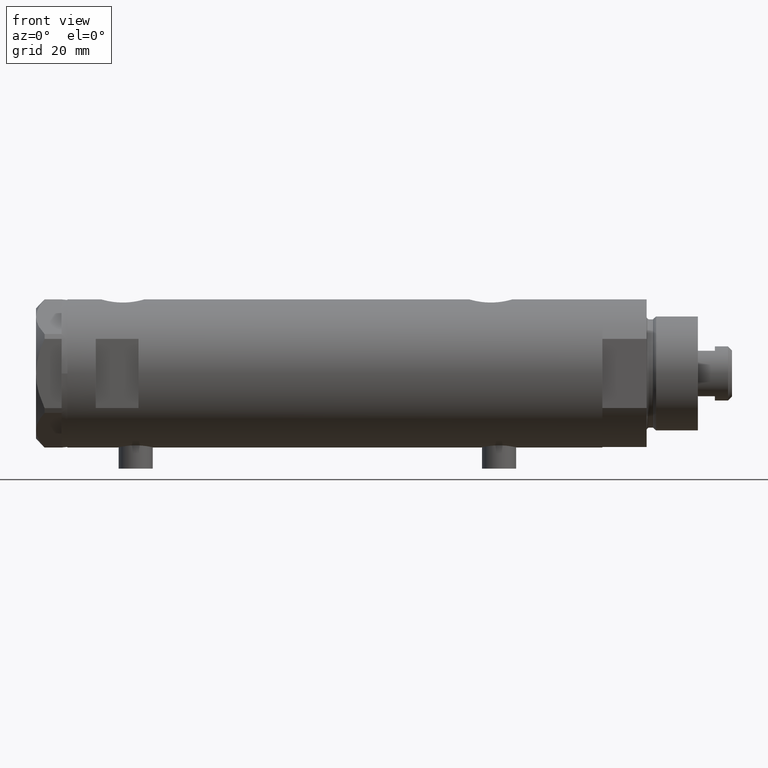
[diagram: clean part render]
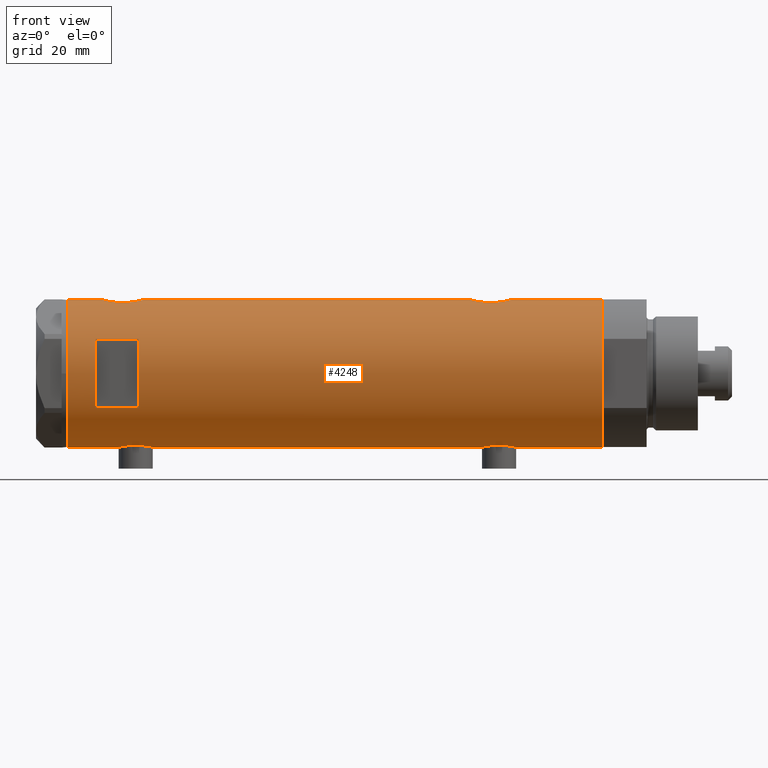
[diagram: same view with one face highlighted and labeled with its STEP entity id]
A machine part, front view. The second image highlights one B-rep face of the part: STEP entity #4248.
In plain terms, the highlighted cylindrical surface (partial cylindrical patch) has radius 26 mm, axis along (-1, -0, 0).
Its self-contained STEP definition (entity closure, byte-faithful):
#71 = VECTOR ( 'NONE', #3741, 1000.000000000000000 ) ;
#72 = CARTESIAN_POINT ( 'NONE',  ( -26.00000000000001066, -0.4086738135806035066, 63.70000000000000995 ) ) ;
#142 = CARTESIAN_POINT ( 'NONE',  ( -25.31551596256916170, -5.928819821281962277, -59.67011491904084153 ) ) ;
#153 = ORIENTED_EDGE ( 'NONE', *, *, #3831, .F. ) ;
#155 = CARTESIAN_POINT ( 'NONE',  ( -25.72076778631230098, -3.815670258243490043, 64.98312189468120437 ) ) ;
#166 = CARTESIAN_POINT ( 'NONE',  ( -25.67063510297209916, -4.128418051804850109, -52.95317424728735034 ) ) ;
#178 = VERTEX_POINT ( 'NONE', #3461 ) ;
#185 = CARTESIAN_POINT ( 'NONE',  ( 24.89854802586676286, -7.487520416261737921, -54.25184316422095065 ) ) ;
#188 = CARTESIAN_POINT ( 'NONE',  ( -25.25025691038241860, -6.198787452305317025, -58.47441165395796503 ) ) ;
#217 = CARTESIAN_POINT ( 'NONE',  ( 24.95200646071794282, -7.307522494171283967, -56.45607564187280758 ) ) ;
#220 = CARTESIAN_POINT ( 'NONE',  ( -25.23758491649666880, -6.250144606721711682, -57.23988300428195686 ) ) ;
#228 = CARTESIAN_POINT ( 'NONE',  ( 25.72873412774685775, -3.768477344985552424, 80.95287460144460567 ) ) ;
#233 = CARTESIAN_POINT ( 'NONE',  ( -25.99999999999999289, -0.4144764235405741237, 76.19999999999998863 ) ) ;
#244 = CARTESIAN_POINT ( 'NONE',  ( 25.00829008792691255, -7.115081037226466343, -52.32698996259181001 ) ) ;
#254 = CARTESIAN_POINT ( 'NONE',  ( 25.59665538672496155, -4.580438224580674067, 80.40889127712388529 ) ) ;
#264 = CARTESIAN_POINT ( 'NONE',  ( -26.00000000000000355, 3.184077527325983904E-15, 63.70000000000000995 ) ) ;
#265 = CARTESIAN_POINT ( 'NONE',  ( 25.88994451797511331, -2.432613607265599498, -61.86140968713201005 ) ) ;
#276 = CARTESIAN_POINT ( 'NONE',  ( 25.48871066912673911, -5.133852125086511897, 68.97709693256024366 ) ) ;
#278 = VERTEX_POINT ( 'NONE', #3473 ) ;
#296 = CARTESIAN_POINT ( 'NONE',  ( 25.78902964777116935, -3.336582972512946554, -61.48475840457738428 ) ) ;
#337 = CYLINDRICAL_SURFACE ( 'NONE', #2991, 26.00000000000000355 ) ;
#377 = AXIS2_PLACEMENT_3D ( 'NONE', #3565, #1680, #3220 ) ;
#378 = CARTESIAN_POINT ( 'NONE',  ( 0.000000000000000000, 0.000000000000000000, -93.95000000000000284 ) ) ;
#380 = VECTOR ( 'NONE', #1433, 1000.000000000000000 ) ;
#413 = LINE ( 'NONE', #1226, #3926 ) ;
#469 = CARTESIAN_POINT ( 'NONE',  ( -25.67167563980648026, -4.129238867693847403, 65.24065943568896841 ) ) ;
#507 = EDGE_CURVE ( 'NONE', #4199, #4585, #1503, .T. ) ;
#553 = CARTESIAN_POINT ( 'NONE',  ( -25.57228991600092627, -4.705691472451703383, -61.78339690124654027 ) ) ;
#560 = CARTESIAN_POINT ( 'NONE',  ( 25.98569226047905900, -0.9886551788957337328, 66.99917623399824151 ) ) ;
#565 = CARTESIAN_POINT ( 'NONE',  ( -25.57167894663063024, -4.701762988462085069, 74.07280450192421029 ) ) ;
#582 = DIRECTION ( 'NONE',  ( 0.000000000000000000, 0.000000000000000000, 1.000000000000000000 ) ) ;
#589 = CARTESIAN_POINT ( 'NONE',  ( -25.49846181844014481, -5.083495422175113632, 73.59177503382601060 ) ) ;
#590 = ORIENTED_EDGE ( 'NONE', *, *, #1044, .T. ) ;
#598 = CARTESIAN_POINT ( 'NONE',  ( 25.27534302296961854, -6.097250460344746159, -50.37590386902925843 ) ) ;
#606 = B_SPLINE_CURVE_WITH_KNOTS ( 'NONE', 3,
 ( #4297, #2503, #3647, #4354, #928, #3593, #228, #254, #2817, #4327, #1401, #1713, #1011, #3201, #2869, #4759, #2422, #666, #2070, #1785, #3669, #2848, #1763, #3937, #960, #3276, #2897, #4375, #2049, #2127, #4017, #276, #1742, #1686, #3228, #2473, #2149, #641, #1324, #560, #4716, #2526 ),
 .UNSPECIFIED., .F., .F.,
 ( 4, 2, 2, 2, 2, 2, 2, 2, 2, 2, 2, 2, 2, 2, 2, 2, 2, 2, 2, 2, 4 ),
 ( 0.02357432247332884312, 0.02504731828495717835, 0.02652031409658551359, 0.02799330990821385229, 0.02946630571984218752, 0.03020280362565635340, 0.03093930153147052275, 0.03241229734309888921, 0.03388529315472726261, 0.03462179106054144584, 0.03535828896635563601, 0.03683128477798400247, 0.03756778268379818569, 0.03830428058961236892, 0.03977727640124074232, 0.04125027221286911572, 0.04198677011868327813, 0.04272326802449745442, 0.04419626383612577231, 0.04566925964775409713, 0.04714225545938241502 ),
 .UNSPECIFIED. ) ;
#616 = CARTESIAN_POINT ( 'NONE',  ( -25.85385060263650914, -2.778671585188189574, 75.56314451304240265 ) ) ;
#633 = CARTESIAN_POINT ( 'NONE',  ( -25.38744165544137488, -5.612847683295917989, -60.42987583238479488 ) ) ;
#641 = CARTESIAN_POINT ( 'NONE',  ( 25.88994451797512397, -2.432613607265604383, 67.33859031286799279 ) ) ;
#659 = ORIENTED_EDGE ( 'NONE', *, *, #3649, .F. ) ;
#661 = CARTESIAN_POINT ( 'NONE',  ( -26.00000000000000355, -8.503928565788675107E-16, -51.39999999999999858 ) ) ;
#666 = CARTESIAN_POINT ( 'NONE',  ( 24.92415241886516952, -7.401968919186677986, 75.68323537444817362 ) ) ;
#668 = VERTEX_POINT ( 'NONE', #2572 ) ;
#670 = CARTESIAN_POINT ( 'NONE',  ( -25.74330903162726258, -3.648508829439215617, 75.02867714715800673 ) ) ;
#679 = CARTESIAN_POINT ( 'NONE',  ( 25.41756773306326522, -5.475260495868973898, -49.61859126343051685 ) ) ;
#689 = CARTESIAN_POINT ( 'NONE',  ( 26.00000000000000355, -3.975025925197986111E-20, -47.25000000000000000 ) ) ;
#697 = EDGE_LOOP ( 'NONE', ( #3325, #590, #3639, #1456, #2930, #1717, #4440, #3877, #3496, #3310, #1982, #659 ) ) ;
#712 = VERTEX_POINT ( 'NONE', #1698 ) ;
#718 = VECTOR ( 'NONE', #582, 1000.000000000000000 ) ;
#755 = CARTESIAN_POINT ( 'NONE',  ( -26.00000000000000355, 1.227111019500118713E-15, 76.20000000000001705 ) ) ;
#823 = CARTESIAN_POINT ( 'NONE',  ( -25.57228991600092272, -4.705691472451695390, 65.81660309875348958 ) ) ;
#869 = CARTESIAN_POINT ( 'NONE',  ( -25.99036913299955742, -0.8159609457881448202, 63.73968856968108554 ) ) ;
#907 = EDGE_CURVE ( 'NONE', #712, #278, #4627, .T. ) ;
#928 = CARTESIAN_POINT ( 'NONE',  ( 25.89059789403177447, -2.425642437452259603, 81.56377447242300605 ) ) ;
#941 = ORIENTED_EDGE ( 'NONE', *, *, #3471, .F. ) ;
#950 = CARTESIAN_POINT ( 'NONE',  ( -25.67167563980648737, -4.129238867693854509, -62.35934056431106143 ) ) ;
#960 = CARTESIAN_POINT ( 'NONE',  ( 24.96970063328117462, -7.247045583599690310, 72.50280785145199047 ) ) ;
#977 = CARTESIAN_POINT ( 'NONE',  ( -25.95218276861526618, -1.627663810194431626, -63.69850980387604977 ) ) ;
#1002 = CARTESIAN_POINT ( 'NONE',  ( -25.71926338401910428, -3.813768894920914754, -52.69427860166185695 ) ) ;
#1011 = CARTESIAN_POINT ( 'NONE',  ( 25.27534302296962565, -6.097250460344746159, 78.82409613097077283 ) ) ;
#1016 = AXIS2_PLACEMENT_3D ( 'NONE', #378, #4525, #2696 ) ;
#1028 = CARTESIAN_POINT ( 'NONE',  ( 25.52567976009756379, -4.956266804246105551, -49.09980072540905383 ) ) ;
#1044 = EDGE_CURVE ( 'NONE', #3971, #4581, #3525, .T. ) ;
#1045 = CARTESIAN_POINT ( 'NONE',  ( -25.99009752186832856, -0.8230863847107351416, 76.15917071406683192 ) ) ;
#1055 = CARTESIAN_POINT ( 'NONE',  ( 24.92415241886515176, -7.401968919186680651, -53.51676462555185054 ) ) ;
#1116 = VERTEX_POINT ( 'NONE', #755 ) ;
#1214 = CARTESIAN_POINT ( 'NONE',  ( -25.95218276861526263, -1.627663810194431404, 63.90149019612397296 ) ) ;
#1226 = CARTESIAN_POINT ( 'NONE',  ( -26.00000000000000355, 3.184081677783118585E-15, -93.95000000000000284 ) ) ;
#1229 = VERTEX_POINT ( 'NONE', #3535 ) ;
#1259 = CARTESIAN_POINT ( 'NONE',  ( -25.81160981652327635, -3.129523010631801494, 64.53607026277929037 ) ) ;
#1283 = CARTESIAN_POINT ( 'NONE',  ( -25.38744165544136777, -5.612847683295913548, 67.17012416761525628 ) ) ;
#1292 = CARTESIAN_POINT ( 'NONE',  ( -25.95206678899177888, -1.628763264760264118, -51.60199186669784410 ) ) ;
#1297 = B_SPLINE_CURVE_WITH_KNOTS ( 'NONE', 3,
 ( #4445, #2085, #2489, #4391, #3638, #3289, #1754, #1418, #1028, #679, #4368, #3977, #598, #2141, #2862, #244, #4423, #1055, #3270, #185, #4751, #3661, #1697, #217, #4809, #3245, #4059, #3606, #4777, #1732, #1444, #1391, #2164, #3212, #1368, #3688, #296, #265, #1343, #1805, #1776, #3320 ),
 .UNSPECIFIED., .F., .F.,
 ( 4, 2, 2, 2, 2, 2, 2, 2, 2, 2, 2, 2, 2, 2, 2, 2, 2, 2, 2, 2, 4 ),
 ( 0.02357432247332888128, 0.02504731828495719570, 0.02652031409658551359, 0.02799330990821382800, 0.02946630571984214589, 0.03020280362565630136, 0.03093930153147046030, 0.03241229734309879207, 0.03388529315472712383, 0.03462179106054129318, 0.03535828896635545560, 0.03683128477798380818, 0.03756778268379799834, 0.03830428058961218157, 0.03977727640124056885, 0.04125027221286896306, 0.04198677011868315323, 0.04272326802449734340, 0.04419626383612573067, 0.04566925964775411795, 0.04714225545938250522 ),
 .UNSPECIFIED. ) ;
#1323 = LINE ( 'NONE', #2525, #718 ) ;
#1324 = CARTESIAN_POINT ( 'NONE',  ( 25.93098857934040069, -1.953835360821276623, 67.19226335297439334 ) ) ;
#1330 = CARTESIAN_POINT ( 'NONE',  ( -25.23763877699557412, -6.249927116972443741, 69.74164472334535958 ) ) ;
#1343 = CARTESIAN_POINT ( 'NONE',  ( 25.93098857934040424, -1.953835360821274847, -62.00773664702559529 ) ) ;
#1361 = EDGE_CURVE ( 'NONE', #4199, #178, #1297, .T. ) ;
#1368 = CARTESIAN_POINT ( 'NONE',  ( 25.62983961939740141, -4.376509667782454649, -60.84558499042960733 ) ) ;
#1371 = CARTESIAN_POINT ( 'NONE',  ( -25.28632996747171546, -6.050474653715422590, -56.03088129158463460 ) ) ;
#1384 = EDGE_CURVE ( 'NONE', #2828, #4128, #4708, .T. ) ;
#1391 = CARTESIAN_POINT ( 'NONE',  ( 25.48871066912673200, -5.133852125086511009, -60.22290306743978050 ) ) ;
#1401 = CARTESIAN_POINT ( 'NONE',  ( 25.38109653984943748, -5.641393955635657598, 79.39819092448753679 ) ) ;
#1406 = CARTESIAN_POINT ( 'NONE',  ( -25.52274351135604746, -4.960534548086194206, 73.75751745340734544 ) ) ;
#1418 = CARTESIAN_POINT ( 'NONE',  ( 25.59665538672496155, -4.580438224580676732, -48.79110872287609624 ) ) ;
#1433 = DIRECTION ( 'NONE',  ( -0.000000000000000000, -0.000000000000000000, -1.000000000000000000 ) ) ;
#1444 = CARTESIAN_POINT ( 'NONE',  ( 25.38125492692910612, -5.649348210287294059, -59.70694334346394072 ) ) ;
#1456 = ORIENTED_EDGE ( 'NONE', *, *, #1361, .F. ) ;
#1457 = CARTESIAN_POINT ( 'NONE',  ( -26.00000000000000355, 1.227111019500118713E-15, 76.20000000000001705 ) ) ;
#1503 = LINE ( 'NONE', #3000, #2496 ) ;
#1557 = B_SPLINE_CURVE_WITH_KNOTS ( 'NONE', 3,
 ( #4400, #3564, #2446, #977, #3957, #4733, #3218, #2863, #2466, #2119, #950, #553, #2043, #4710, #633, #142, #3248, #4372, #188, #3174, #4321, #220, #4289, #1371, #3588, #4038, #3982, #4664, #1679, #2887, #4683, #4010, #166, #1002, #3193, #2519, #1702, #2494, #1292, #2811, #3640, #661 ),
 .UNSPECIFIED., .F., .F.,
 ( 4, 2, 2, 2, 2, 2, 2, 2, 2, 2, 2, 2, 2, 2, 2, 2, 2, 2, 2, 2, 4 ),
 ( 0.01961238453869445023, 0.02083783025472770584, 0.02206327597076096492, 0.02267599882877758405, 0.02328872168679420665, 0.02451416740282742757, 0.02573961311886065889, 0.02696505883489389022, 0.02819050455092712501, 0.02880322740894373373, 0.02941595026696033899, 0.03064139598299355643, 0.03186684169902676694, 0.03309228741505997745, 0.03370501027307658271, 0.03431773313109319490, 0.03493045598910980015, 0.03554317884712640541, 0.03676862456315962979, 0.03799407027919285418, 0.03921951599522608550 ),
 .UNSPECIFIED. ) ;
#1574 = EDGE_CURVE ( 'NONE', #4581, #178, #4828, .T. ) ;
#1644 = CARTESIAN_POINT ( 'NONE',  ( -26.00000000000000355, 3.184077527250253257E-15, -63.90000000000001279 ) ) ;
#1649 = CARTESIAN_POINT ( 'NONE',  ( -25.85288666140180069, -2.767917424206677524, 64.34257790010329359 ) ) ;
#1663 = EDGE_CURVE ( 'NONE', #1116, #2330, #413, .T. ) ;
#1679 = CARTESIAN_POINT ( 'NONE',  ( -25.52274351135604391, -4.960534548086211970, -53.84248254659268440 ) ) ;
#1680 = DIRECTION ( 'NONE',  ( -0.000000000000000000, 0.000000000000000000, -1.000000000000000000 ) ) ;
#1686 = CARTESIAN_POINT ( 'NONE',  ( 25.59500516383205948, -4.575229401795803952, 68.50212244934583339 ) ) ;
#1697 = CARTESIAN_POINT ( 'NONE',  ( 24.90947356773249766, -7.451722770779341865, -55.73190841828151321 ) ) ;
#1698 = CARTESIAN_POINT ( 'NONE',  ( 12.12435565298214080, -23.00000000000000355, 83.95000000000000284 ) ) ;
#1702 = CARTESIAN_POINT ( 'NONE',  ( -25.85385060263651269, -2.778671585188182913, -52.03685548695762719 ) ) ;
#1713 = CARTESIAN_POINT ( 'NONE',  ( 25.31004928890825312, -5.952041021437449508, 79.01980599883506784 ) ) ;
#1717 = ORIENTED_EDGE ( 'NONE', *, *, #3204, .F. ) ;
#1720 = CARTESIAN_POINT ( 'NONE',  ( -25.59645788645699227, -4.565358797148518555, 74.22330529203480864 ) ) ;
#1732 = CARTESIAN_POINT ( 'NONE',  ( 25.30930190055640239, -5.959775463244125326, -59.32974043478028392 ) ) ;
#1742 = CARTESIAN_POINT ( 'NONE',  ( 25.52449676677459678, -4.953491517965891155, 68.81325508665931068 ) ) ;
#1754 = CARTESIAN_POINT ( 'NONE',  ( 25.72873412774685775, -3.768477344985552424, -48.24712539855535454 ) ) ;
#1762 = VERTEX_POINT ( 'NONE', #2253 ) ;
#1763 = CARTESIAN_POINT ( 'NONE',  ( 24.90947356773250121, -7.451722770779340088, 73.46809158171848253 ) ) ;
#1776 = CARTESIAN_POINT ( 'NONE',  ( 25.99999999999999645, -0.4982617809740603199, -62.24999999999998579 ) ) ;
#1785 = CARTESIAN_POINT ( 'NONE',  ( 24.89854802586675575, -7.487520416261734368, 74.94815683577905929 ) ) ;
#1791 = AXIS2_PLACEMENT_3D ( 'NONE', #2988, #4390, #4827 ) ;
#1805 = CARTESIAN_POINT ( 'NONE',  ( 25.98569226047905190, -0.9886551788957271825, -62.20082376600176133 ) ) ;
#1832 = CARTESIAN_POINT ( 'NONE',  ( 12.12435565298214080, -23.00000000000000355, -93.95000000000000284 ) ) ;
#1845 = DIRECTION ( 'NONE',  ( 1.000000000000000000, 0.000000000000000000, 0.000000000000000000 ) ) ;
#1850 = CARTESIAN_POINT ( 'NONE',  ( -26.00000000000000355, 3.184081677783118585E-15, -93.95000000000000284 ) ) ;
#1865 = CARTESIAN_POINT ( 'NONE',  ( 26.00000000000000355, 0.000000000000000000, -93.95000000000000284 ) ) ;
#1881 = VECTOR ( 'NONE', #4112, 1000.000000000000000 ) ;
#1982 = ORIENTED_EDGE ( 'NONE', *, *, #4011, .F. ) ;
#2043 = CARTESIAN_POINT ( 'NONE',  ( -25.52190669608696183, -4.968444991210430040, -61.46341092192486144 ) ) ;
#2049 = CARTESIAN_POINT ( 'NONE',  ( 25.17393786935995692, -6.507882790539422757, 70.68962666655967553 ) ) ;
#2062 = CARTESIAN_POINT ( 'NONE',  ( 26.00000000000000355, 0.000000000000000000, -93.95000000000000284 ) ) ;
#2070 = CARTESIAN_POINT ( 'NONE',  ( 24.91324908721446008, -7.438459228814657820, 75.44017499374190550 ) ) ;
#2085 = CARTESIAN_POINT ( 'NONE',  ( 26.00000000000001066, -0.4910237949823163528, -47.25000000000001421 ) ) ;
#2103 = CARTESIAN_POINT ( 'NONE',  ( -25.92364458890660472, -2.026637113504541343, 75.87630990691478416 ) ) ;
#2119 = CARTESIAN_POINT ( 'NONE',  ( -25.72076778631230454, -3.815670258243488266, -62.61687810531882548 ) ) ;
#2127 = CARTESIAN_POINT ( 'NONE',  ( 25.30930190055639528, -5.959775463244125326, 69.87025956521972603 ) ) ;
#2130 = CARTESIAN_POINT ( 'NONE',  ( -25.28632996747172967, -6.050474653715409268, 71.56911870841541656 ) ) ;
#2138 = LINE ( 'NONE', #1850, #71 ) ;
#2141 = CARTESIAN_POINT ( 'NONE',  ( 25.17510548814053095, -6.503212750695464450, -50.98238212184652696 ) ) ;
#2149 = CARTESIAN_POINT ( 'NONE',  ( 25.78902964777117290, -3.336582972512956768, 67.71524159542266830 ) ) ;
#2151 = CARTESIAN_POINT ( 'NONE',  ( -25.67063510297210271, -4.128418051804843003, 74.64682575271267240 ) ) ;
#2164 = CARTESIAN_POINT ( 'NONE',  ( 25.52449676677459678, -4.953491517965876945, -60.38674491334074190 ) ) ;
#2167 = LINE ( 'NONE', #1832, #2658 ) ;
#2253 = CARTESIAN_POINT ( 'NONE',  ( -12.12435565298214080, -23.00000000000000355, 68.94999999999998863 ) ) ;
#2256 = CARTESIAN_POINT ( 'NONE',  ( 0.000000000000000000, 0.000000000000000000, -93.95000000000000284 ) ) ;
#2258 = CARTESIAN_POINT ( 'NONE',  ( 26.00000000000000355, -2.747580718823405516E-15, 66.95000000000000284 ) ) ;
#2313 = CARTESIAN_POINT ( 'NONE',  ( -25.25769689814630325, -6.168504065326069430, 68.92353364703252794 ) ) ;
#2330 = VERTEX_POINT ( 'NONE', #2806 ) ;
#2363 = CARTESIAN_POINT ( 'NONE',  ( -25.92425332714051933, -2.018894156999441858, 64.02103879324673130 ) ) ;
#2422 = CARTESIAN_POINT ( 'NONE',  ( 24.96672817551789691, -7.257586026187390793, 76.40384199721299296 ) ) ;
#2446 = CARTESIAN_POINT ( 'NONE',  ( -25.99036913299956097, -0.8159609457881454864, -63.86031143031890878 ) ) ;
#2463 = DIRECTION ( 'NONE',  ( 0.000000000000000000, 0.000000000000000000, 1.000000000000000000 ) ) ;
#2466 = CARTESIAN_POINT ( 'NONE',  ( -25.78943824387522454, -3.306687742228910487, -62.95754138783468790 ) ) ;
#2473 = CARTESIAN_POINT ( 'NONE',  ( 25.72912156655466376, -3.765948295762494791, 67.94557024600780437 ) ) ;
#2489 = CARTESIAN_POINT ( 'NONE',  ( 25.98599366666249466, -0.9828433289544072915, -47.29811598276526752 ) ) ;
#2494 = CARTESIAN_POINT ( 'NONE',  ( -25.92364458890659762, -2.026637113504532905, -51.72369009308527410 ) ) ;
#2496 = VECTOR ( 'NONE', #4609, 1000.000000000000000 ) ;
#2503 = CARTESIAN_POINT ( 'NONE',  ( 26.00000000000001066, -0.4910237949823165748, 81.95000000000001705 ) ) ;
#2508 = CARTESIAN_POINT ( 'NONE',  ( -25.25025691038242215, -6.198787452305312584, 69.12558834604207902 ) ) ;
#2519 = CARTESIAN_POINT ( 'NONE',  ( -25.81232680456766815, -3.137210741985122286, -52.22886342778421209 ) ) ;
#2525 = CARTESIAN_POINT ( 'NONE',  ( -26.00000000000000355, 3.184081677783118585E-15, -93.95000000000000284 ) ) ;
#2526 = CARTESIAN_POINT ( 'NONE',  ( 26.00000000000000355, -2.747580718823405516E-15, 66.95000000000000284 ) ) ;
#2554 = EDGE_CURVE ( 'NONE', #2330, #4128, #3917, .T. ) ;
#2572 = CARTESIAN_POINT ( 'NONE',  ( 12.12435565298214080, -23.00000000000000355, 68.94999999999998863 ) ) ;
#2578 = VERTEX_POINT ( 'NONE', #264 ) ;
#2643 = CARTESIAN_POINT ( 'NONE',  ( -12.12435565298214080, -23.00000000000000355, -93.95000000000000284 ) ) ;
#2658 = VECTOR ( 'NONE', #4397, 1000.000000000000000 ) ;
#2689 = CARTESIAN_POINT ( 'NONE',  ( -25.87202607293667000, -2.583404329177993120, 64.25526333145488422 ) ) ;
#2696 = DIRECTION ( 'NONE',  ( 1.000000000000000000, 0.000000000000000000, 0.000000000000000000 ) ) ;
#2757 = CARTESIAN_POINT ( 'NONE',  ( -25.52190669608696183, -4.968444991210429151, 66.13658907807516130 ) ) ;
#2778 = CARTESIAN_POINT ( 'NONE',  ( -25.31551596256916525, -5.928819821281963165, 67.92988508095919542 ) ) ;
#2787 = ORIENTED_EDGE ( 'NONE', *, *, #907, .F. ) ;
#2806 = CARTESIAN_POINT ( 'NONE',  ( -26.00000000000000355, 3.184081677783118585E-15, 93.95000000000000284 ) ) ;
#2811 = CARTESIAN_POINT ( 'NONE',  ( -25.99009752186833211, -0.8230863847107499076, -51.44082928593319082 ) ) ;
#2817 = CARTESIAN_POINT ( 'NONE',  ( 25.52567976009756379, -4.956266804246106439, 80.10019927459092060 ) ) ;
#2828 = VERTEX_POINT ( 'NONE', #3442 ) ;
#2848 = CARTESIAN_POINT ( 'NONE',  ( 24.89475831528844907, -7.500067228253129770, 73.95662571746466085 ) ) ;
#2862 = CARTESIAN_POINT ( 'NONE',  ( 25.11342038069227200, -6.734617143597207978, -51.41229304209507234 ) ) ;
#2863 = CARTESIAN_POINT ( 'NONE',  ( -25.81160981652327635, -3.129523010631801938, -63.06392973722074657 ) ) ;
#2869 = CARTESIAN_POINT ( 'NONE',  ( 25.11342038069226845, -6.734617143597199984, 77.78770695790493050 ) ) ;
#2887 = CARTESIAN_POINT ( 'NONE',  ( -25.57167894663062668, -4.701762988462101056, -53.52719549807584087 ) ) ;
#2897 = CARTESIAN_POINT ( 'NONE',  ( 25.03461301890608226, -7.019803056070506031, 71.79816816893104203 ) ) ;
#2904 = CARTESIAN_POINT ( 'NONE',  ( -25.64593536028936427, -4.278686337618962554, 74.51031602960878786 ) ) ;
#2905 = CIRCLE ( 'NONE', #3622, 26.00000000000000355 ) ;
#2924 = EDGE_CURVE ( 'NONE', #668, #712, #2167, .T. ) ;
#2930 = ORIENTED_EDGE ( 'NONE', *, *, #507, .T. ) ;
#2988 = CARTESIAN_POINT ( 'NONE',  ( 0.000000000000000000, 0.000000000000000000, 93.95000000000000284 ) ) ;
#2991 = AXIS2_PLACEMENT_3D ( 'NONE', #2256, #3027, #1845 ) ;
#3000 = CARTESIAN_POINT ( 'NONE',  ( 26.00000000000000355, 0.000000000000000000, -93.95000000000000284 ) ) ;
#3027 = DIRECTION ( 'NONE',  ( 0.000000000000000000, 0.000000000000000000, 1.000000000000000000 ) ) ;
#3112 = VERTEX_POINT ( 'NONE', #1644 ) ;
#3174 = CARTESIAN_POINT ( 'NONE',  ( -25.24022290516698419, -6.239518219915434649, -58.06597215938433720 ) ) ;
#3193 = CARTESIAN_POINT ( 'NONE',  ( -25.74330903162726614, -3.648508829439221390, -52.57132285284203022 ) ) ;
#3201 = CARTESIAN_POINT ( 'NONE',  ( 25.17510548814052740, -6.503212750695460009, 78.21761787815347589 ) ) ;
#3204 = EDGE_CURVE ( 'NONE', #2828, #4585, #606, .T. ) ;
#3212 = CARTESIAN_POINT ( 'NONE',  ( 25.59500516383205593, -4.575229401795787965, -60.69787755065421919 ) ) ;
#3218 = CARTESIAN_POINT ( 'NONE',  ( -25.85288666140180069, -2.767917424206677968, -63.25742209989670783 ) ) ;
#3219 = CARTESIAN_POINT ( 'NONE',  ( 26.00000000000000355, 0.000000000000000000, 93.95000000000000284 ) ) ;
#3220 = DIRECTION ( 'NONE',  ( 1.000000000000000000, 0.000000000000000000, 0.000000000000000000 ) ) ;
#3228 = CARTESIAN_POINT ( 'NONE',  ( 25.62983961939740496, -4.376509667782460866, 68.35441500957041683 ) ) ;
#3245 = CARTESIAN_POINT ( 'NONE',  ( 25.01107424167501136, -7.102941973849614676, -57.17062848662576613 ) ) ;
#3248 = CARTESIAN_POINT ( 'NONE',  ( -25.28680988956729436, -6.048472998962281189, -59.27627694188244334 ) ) ;
#3270 = CARTESIAN_POINT ( 'NONE',  ( 24.91324908721445652, -7.438459228814655155, -53.75982500625809024 ) ) ;
#3276 = CARTESIAN_POINT ( 'NONE',  ( 25.01107424167501136, -7.102941973849612012, 72.02937151337422961 ) ) ;
#3289 = CARTESIAN_POINT ( 'NONE',  ( 25.78993643992928853, -3.329561377902402697, -48.01178439721262947 ) ) ;
#3310 = ORIENTED_EDGE ( 'NONE', *, *, #4196, .F. ) ;
#3320 = CARTESIAN_POINT ( 'NONE',  ( 26.00000000000000355, 3.343657407582877388E-16, -62.25000000000000000 ) ) ;
#3325 = ORIENTED_EDGE ( 'NONE', *, *, #4348, .F. ) ;
#3442 = CARTESIAN_POINT ( 'NONE',  ( 26.00000000000000355, -3.975028449552882818E-20, 81.94999999999998863 ) ) ;
#3455 = CARTESIAN_POINT ( 'NONE',  ( -26.00000000000000355, 3.184077527325983904E-15, 63.70000000000000995 ) ) ;
#3461 = CARTESIAN_POINT ( 'NONE',  ( 26.00000000000000355, 3.343657407582877388E-16, -62.25000000000000000 ) ) ;
#3471 = EDGE_CURVE ( 'NONE', #278, #1762, #3772, .T. ) ;
#3473 = CARTESIAN_POINT ( 'NONE',  ( -12.12435565298214080, -23.00000000000000355, 83.95000000000000284 ) ) ;
#3481 = CARTESIAN_POINT ( 'NONE',  ( -25.28680988956730147, -6.048472998962280300, 68.32372305811757940 ) ) ;
#3496 = ORIENTED_EDGE ( 'NONE', *, *, #1663, .F. ) ;
#3505 = CARTESIAN_POINT ( 'NONE',  ( 0.000000000000000000, 0.000000000000000000, 68.95000000000008811 ) ) ;
#3525 = CIRCLE ( 'NONE', #1016, 26.00000000000000355 ) ;
#3535 = CARTESIAN_POINT ( 'NONE',  ( -26.00000000000000355, -8.503928565788675107E-16, -51.39999999999999858 ) ) ;
#3564 = CARTESIAN_POINT ( 'NONE',  ( -26.00000000000000711, -0.4086738135806026739, -63.90000000000002700 ) ) ;
#3565 = CARTESIAN_POINT ( 'NONE',  ( 0.000000000000000000, 0.000000000000000000, 83.95000000000000284 ) ) ;
#3588 = CARTESIAN_POINT ( 'NONE',  ( -25.31538696791482224, -5.929326713517960812, -55.63203367791898302 ) ) ;
#3593 = CARTESIAN_POINT ( 'NONE',  ( 25.78993643992928853, -3.329561377902403585, 81.18821560278736627 ) ) ;
#3606 = CARTESIAN_POINT ( 'NONE',  ( 25.11243836838845667, -6.738202653785825724, -58.07956649155156725 ) ) ;
#3622 = AXIS2_PLACEMENT_3D ( 'NONE', #3505, #3833, #4608 ) ;
#3626 = CARTESIAN_POINT ( 'NONE',  ( -25.31538696791482224, -5.929326713517952818, 71.96796632208102551 ) ) ;
#3638 = CARTESIAN_POINT ( 'NONE',  ( 25.89059789403177447, -2.425642437452257383, -47.63622552757698969 ) ) ;
#3639 = ORIENTED_EDGE ( 'NONE', *, *, #1574, .T. ) ;
#3640 = CARTESIAN_POINT ( 'NONE',  ( -26.00000000000000355, -0.4144764235405725139, -51.39999999999999147 ) ) ;
#3647 = CARTESIAN_POINT ( 'NONE',  ( 25.98599366666249466, -0.9828433289544105111, 81.90188401723473532 ) ) ;
#3649 = EDGE_CURVE ( 'NONE', #3112, #1229, #1557, .T. ) ;
#3661 = CARTESIAN_POINT ( 'NONE',  ( 24.89475831528845262, -7.500067228253130658, -55.24337428253536331 ) ) ;
#3669 = CARTESIAN_POINT ( 'NONE',  ( 24.89478872726945724, -7.499966281647698629, 74.69821850634782834 ) ) ;
#3688 = CARTESIAN_POINT ( 'NONE',  ( 25.72912156655465665, -3.765948295762491238, -61.25442975399222689 ) ) ;
#3741 = DIRECTION ( 'NONE',  ( 0.000000000000000000, 0.000000000000000000, 1.000000000000000000 ) ) ;
#3762 = CARTESIAN_POINT ( 'NONE',  ( -26.00000000000000355, 3.184081677783118585E-15, -93.95000000000000284 ) ) ;
#3772 = LINE ( 'NONE', #2643, #380 ) ;
#3831 = EDGE_CURVE ( 'NONE', #1762, #668, #2905, .T. ) ;
#3833 = DIRECTION ( 'NONE',  ( -0.000000000000000000, -4.625929269271486900E-15, 1.000000000000000000 ) ) ;
#3849 = B_SPLINE_CURVE_WITH_KNOTS ( 'NONE', 3,
 ( #3455, #72, #869, #1214, #2363, #2689, #1649, #1259, #3875, #155, #469, #823, #2757, #4654, #1283, #2778, #3481, #2313, #2508, #4358, #1330, #4335, #4675, #2130, #3626, #4762, #3968, #589, #1406, #565, #1720, #2904, #2151, #4721, #670, #3992, #616, #2103, #4413, #1045, #233, #1457 ),
 .UNSPECIFIED., .F., .F.,
 ( 4, 2, 2, 2, 2, 2, 2, 2, 2, 2, 2, 2, 2, 2, 2, 2, 2, 2, 2, 2, 4 ),
 ( 0.01961238453869444676, 0.02083783025472769543, 0.02206327597076094410, 0.02267599882877755976, 0.02328872168679417543, 0.02451416740282743104, 0.02573961311886067971, 0.02696505883489393532, 0.02819050455092719093, 0.02880322740894379618, 0.02941595026696040144, 0.03064139598299361195, 0.03186684169902682245, 0.03309228741506003296, 0.03370501027307663822, 0.03431773313109324347, 0.03493045598910984872, 0.03554317884712646092, 0.03676862456315967143, 0.03799407027919288193, 0.03921951599522609938 ),
 .UNSPECIFIED. ) ;
#3875 = CARTESIAN_POINT ( 'NONE',  ( -25.78943824387523520, -3.306687742228914484, 64.64245861216537037 ) ) ;
#3877 = ORIENTED_EDGE ( 'NONE', *, *, #2554, .F. ) ;
#3917 = CIRCLE ( 'NONE', #1791, 26.00000000000000355 ) ;
#3926 = VECTOR ( 'NONE', #4187, 1000.000000000000000 ) ;
#3937 = CARTESIAN_POINT ( 'NONE',  ( 24.95200646071794637, -7.307522494171281302, 72.74392435812723079 ) ) ;
#3957 = CARTESIAN_POINT ( 'NONE',  ( -25.92425332714051223, -2.018894156999442746, -63.57896120675329854 ) ) ;
#3968 = CARTESIAN_POINT ( 'NONE',  ( -25.42883439573799720, -5.424786127492320809, 73.08081457260909986 ) ) ;
#3971 = VERTEX_POINT ( 'NONE', #3762 ) ;
#3977 = CARTESIAN_POINT ( 'NONE',  ( 25.31004928890824957, -5.952041021437452173, -50.18019400116494211 ) ) ;
#3982 = CARTESIAN_POINT ( 'NONE',  ( -25.42883439573800430, -5.424786127492344789, -54.51918542739093709 ) ) ;
#3992 = CARTESIAN_POINT ( 'NONE',  ( -25.81232680456766815, -3.137210741985116513, 75.37113657221577512 ) ) ;
#4010 = CARTESIAN_POINT ( 'NONE',  ( -25.64593536028936782, -4.278686337618967883, -53.08968397039122777 ) ) ;
#4011 = EDGE_CURVE ( 'NONE', #1229, #2578, #2138, .T. ) ;
#4017 = CARTESIAN_POINT ( 'NONE',  ( 25.38125492692910967, -5.649348210287292282, 69.49305665653604080 ) ) ;
#4038 = CARTESIAN_POINT ( 'NONE',  ( -25.38662204309616754, -5.616507264474315697, -54.87800622280676777 ) ) ;
#4059 = CARTESIAN_POINT ( 'NONE',  ( 25.03461301890608581, -7.019803056070506031, -57.40183183106895370 ) ) ;
#4100 = FACE_OUTER_BOUND ( 'NONE', #697, .T. ) ;
#4112 = DIRECTION ( 'NONE',  ( 0.000000000000000000, 0.000000000000000000, 1.000000000000000000 ) ) ;
#4128 = VERTEX_POINT ( 'NONE', #3219 ) ;
#4142 = FACE_BOUND ( 'NONE', #4382, .T. ) ;
#4187 = DIRECTION ( 'NONE',  ( 0.000000000000000000, 0.000000000000000000, 1.000000000000000000 ) ) ;
#4196 = EDGE_CURVE ( 'NONE', #2578, #1116, #3849, .T. ) ;
#4199 = VERTEX_POINT ( 'NONE', #689 ) ;
#4248 = ADVANCED_FACE ( 'NONE', ( #4100, #4142 ), #337, .T. ) ;
#4289 = CARTESIAN_POINT ( 'NONE',  ( -25.24765475072630139, -6.209883762780014749, -56.83321815644903552 ) ) ;
#4297 = CARTESIAN_POINT ( 'NONE',  ( 26.00000000000000355, -3.975028449552882818E-20, 81.94999999999998863 ) ) ;
#4321 = CARTESIAN_POINT ( 'NONE',  ( -25.23763877699556701, -6.249927116972449070, -57.85835527665467026 ) ) ;
#4327 = CARTESIAN_POINT ( 'NONE',  ( 25.41756773306325101, -5.475260495868973898, 79.58140873656945757 ) ) ;
#4335 = CARTESIAN_POINT ( 'NONE',  ( -25.23758491649666524, -6.250144606721703688, 70.36011699571805877 ) ) ;
#4348 = EDGE_CURVE ( 'NONE', #3971, #3112, #1323, .T. ) ;
#4354 = CARTESIAN_POINT ( 'NONE',  ( 25.93085545515512891, -1.956676574435511906, 81.70727036830264467 ) ) ;
#4358 = CARTESIAN_POINT ( 'NONE',  ( -25.24022290516698774, -6.239518219915429320, 69.53402784061570685 ) ) ;
#4368 = CARTESIAN_POINT ( 'NONE',  ( 25.38109653984943748, -5.641393955635659374, -49.80180907551250158 ) ) ;
#4372 = CARTESIAN_POINT ( 'NONE',  ( -25.25769689814629970, -6.168504065326076535, -58.67646635296745927 ) ) ;
#4375 = CARTESIAN_POINT ( 'NONE',  ( 25.11243836838846022, -6.738202653785830165, 71.12043350844841427 ) ) ;
#4382 = EDGE_LOOP ( 'NONE', ( #153, #941, #2787, #4769 ) ) ;
#4390 = DIRECTION ( 'NONE',  ( 0.000000000000000000, 0.000000000000000000, 1.000000000000000000 ) ) ;
#4391 = CARTESIAN_POINT ( 'NONE',  ( 25.93085545515512891, -1.956676574435509686, -47.49272963169730843 ) ) ;
#4397 = DIRECTION ( 'NONE',  ( 0.000000000000000000, 0.000000000000000000, 1.000000000000000000 ) ) ;
#4400 = CARTESIAN_POINT ( 'NONE',  ( -26.00000000000000355, 3.184077527250253257E-15, -63.90000000000001279 ) ) ;
#4413 = CARTESIAN_POINT ( 'NONE',  ( -25.95206678899177888, -1.628763264760248353, 75.99800813330216442 ) ) ;
#4423 = CARTESIAN_POINT ( 'NONE',  ( 24.96672817551788270, -7.257586026187393458, -52.79615800278703119 ) ) ;
#4440 = ORIENTED_EDGE ( 'NONE', *, *, #1384, .T. ) ;
#4445 = CARTESIAN_POINT ( 'NONE',  ( 26.00000000000000355, -3.975025925197986111E-20, -47.25000000000000000 ) ) ;
#4469 = CARTESIAN_POINT ( 'NONE',  ( 26.00000000000000355, 0.000000000000000000, -93.95000000000000284 ) ) ;
#4525 = DIRECTION ( 'NONE',  ( 0.000000000000000000, 0.000000000000000000, 1.000000000000000000 ) ) ;
#4557 = VECTOR ( 'NONE', #2463, 1000.000000000000000 ) ;
#4581 = VERTEX_POINT ( 'NONE', #1865 ) ;
#4585 = VERTEX_POINT ( 'NONE', #2258 ) ;
#4608 = DIRECTION ( 'NONE',  ( 1.776356839400250465E-15, 1.000000000000000000, 4.803849625781927035E-15 ) ) ;
#4609 = DIRECTION ( 'NONE',  ( 0.000000000000000000, 0.000000000000000000, 1.000000000000000000 ) ) ;
#4627 = CIRCLE ( 'NONE', #377, 26.00000000000000355 ) ;
#4654 = CARTESIAN_POINT ( 'NONE',  ( -25.42977453177915592, -5.420307583276858132, 66.81187728206637644 ) ) ;
#4664 = CARTESIAN_POINT ( 'NONE',  ( -25.49846181844014126, -5.083495422175140277, -54.00822496617402635 ) ) ;
#4675 = CARTESIAN_POINT ( 'NONE',  ( -25.24765475072630139, -6.209883762780004091, 70.76678184355101564 ) ) ;
#4683 = CARTESIAN_POINT ( 'NONE',  ( -25.59645788645699582, -4.565358797148525660, -53.37669470796521409 ) ) ;
#4708 = LINE ( 'NONE', #2062, #4557 ) ;
#4710 = CARTESIAN_POINT ( 'NONE',  ( -25.42977453177915592, -5.420307583276862573, -60.78812271793365340 ) ) ;
#4716 = CARTESIAN_POINT ( 'NONE',  ( 26.00000000000000711, -0.4982617809740558790, 66.95000000000001705 ) ) ;
#4721 = CARTESIAN_POINT ( 'NONE',  ( -25.71926338401910073, -3.813768894920909425, 74.90572139833817289 ) ) ;
#4733 = CARTESIAN_POINT ( 'NONE',  ( -25.87202607293667000, -2.583404329177994008, -63.34473666854513141 ) ) ;
#4751 = CARTESIAN_POINT ( 'NONE',  ( 24.89478872726946079, -7.499966281647702182, -54.50178149365218161 ) ) ;
#4759 = CARTESIAN_POINT ( 'NONE',  ( 25.00829008792691965, -7.115081037226463678, 76.87301003740822125 ) ) ;
#4762 = CARTESIAN_POINT ( 'NONE',  ( -25.38662204309616399, -5.616507264474307703, 72.72199377719323365 ) ) ;
#4769 = ORIENTED_EDGE ( 'NONE', *, *, #2924, .F. ) ;
#4777 = CARTESIAN_POINT ( 'NONE',  ( 25.17393786935995692, -6.507882790539420981, -58.51037333344031310 ) ) ;
#4809 = CARTESIAN_POINT ( 'NONE',  ( 24.96970063328116751, -7.247045583599693863, -56.69719214854801947 ) ) ;
#4827 = DIRECTION ( 'NONE',  ( 1.000000000000000000, 0.000000000000000000, 0.000000000000000000 ) ) ;
#4828 = LINE ( 'NONE', #4469, #1881 ) ;